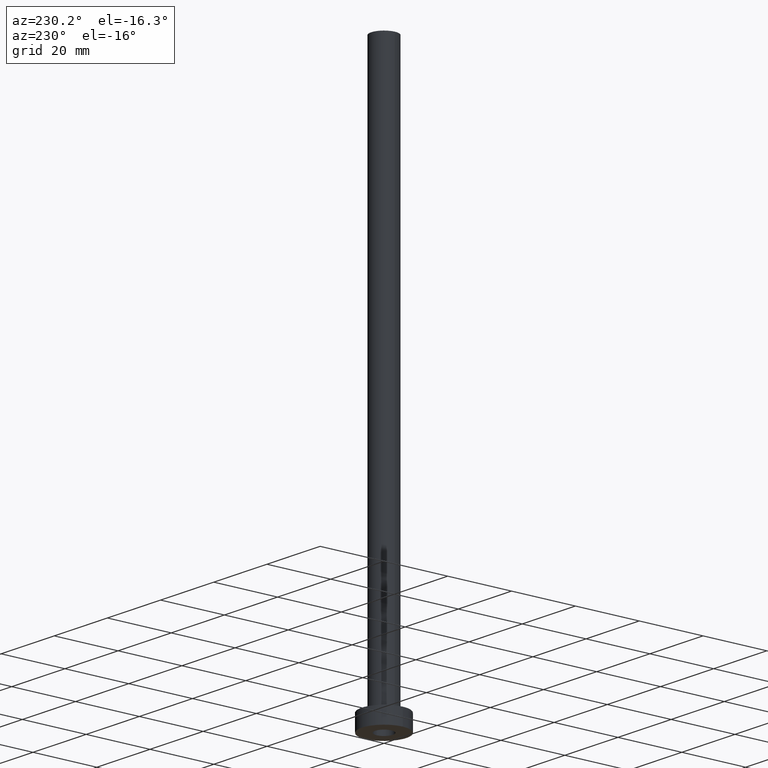
[diagram: clean part render]
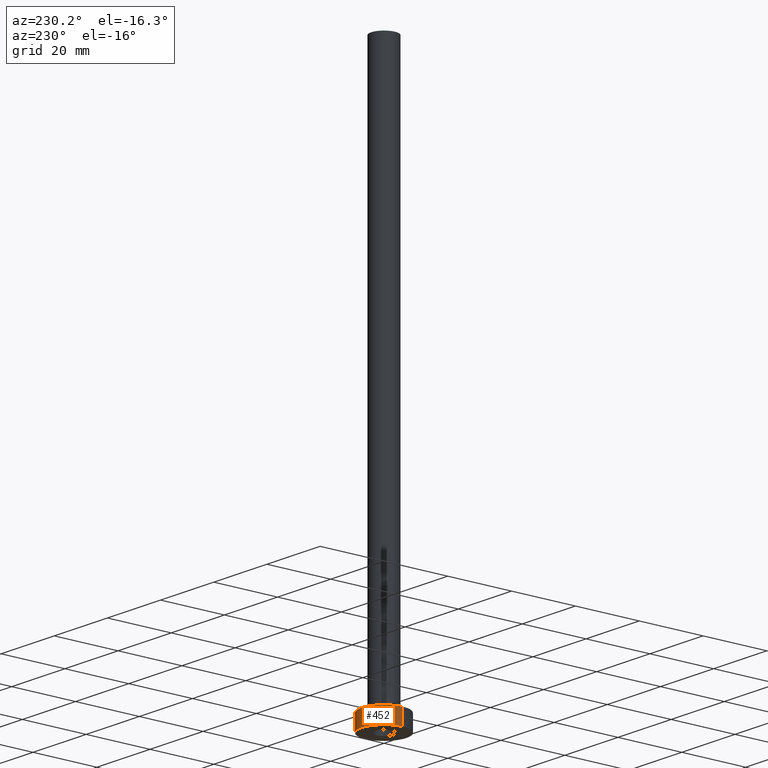
[diagram: same view with one face highlighted and labeled with its STEP entity id]
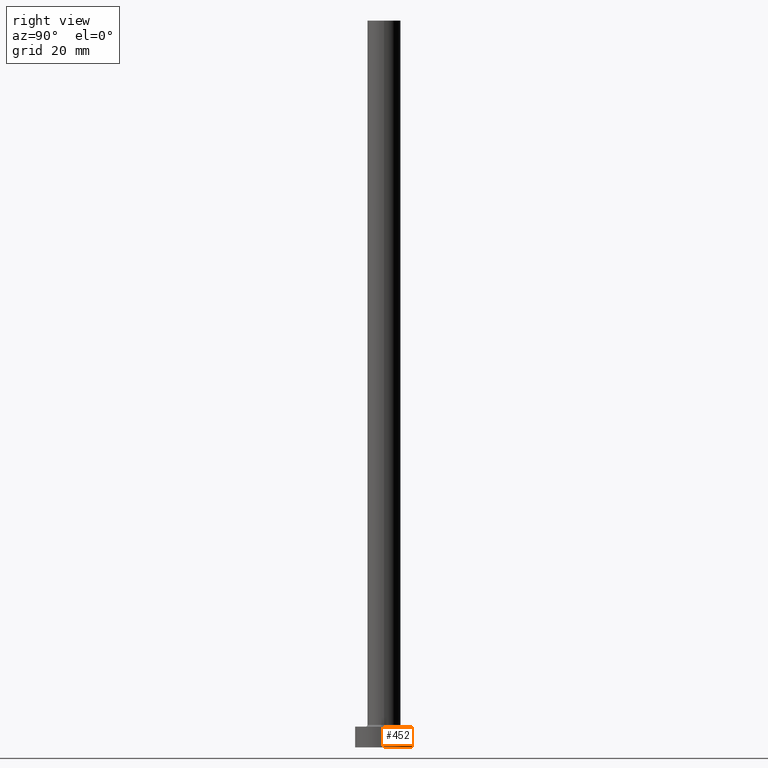
[diagram: same view with one face highlighted and labeled with its STEP entity id]
A machine part, auxiliary view. The second image highlights one B-rep face of the part: STEP entity #452.
A second angle (right view) of the same face is appended — the face is thin or edge-on in the first view.
In plain terms, the highlighted cylindrical surface (edge-blend (fillet) strip) has radius 7 mm, axis along (-0, -0, -1).
Its self-contained STEP definition (entity closure, byte-faithful):
#14 = EDGE_CURVE ( 'NONE', #414, #337, #263, .T. ) ;
#40 = DIRECTION ( 'NONE',  ( 1.000000000000000000, 0.000000000000000000, 0.000000000000000000 ) ) ;
#67 = DIRECTION ( 'NONE',  ( -0.000000000000000000, -0.000000000000000000, -1.000000000000000000 ) ) ;
#85 = DIRECTION ( 'NONE',  ( -0.000000000000000000, -0.000000000000000000, -1.000000000000000000 ) ) ;
#89 = LINE ( 'NONE', #279, #376 ) ;
#105 = CARTESIAN_POINT ( 'NONE',  ( 7.000000000000000000, 8.572527594031473190E-16, 5.000000000000000000 ) ) ;
#123 = AXIS2_PLACEMENT_3D ( 'NONE', #252, #85, #409 ) ;
#142 = EDGE_CURVE ( 'NONE', #179, #382, #408, .T. ) ;
#160 = DIRECTION ( 'NONE',  ( 1.000000000000000000, 0.000000000000000000, 0.000000000000000000 ) ) ;
#175 = DIRECTION ( 'NONE',  ( 0.000000000000000000, 0.000000000000000000, 1.000000000000000000 ) ) ;
#179 = VERTEX_POINT ( 'NONE', #105 ) ;
#181 = CARTESIAN_POINT ( 'NONE',  ( -7.000000000000000000, 0.000000000000000000, 0.000000000000000000 ) ) ;
#188 = EDGE_CURVE ( 'NONE', #179, #414, #260, .T. ) ;
#190 = AXIS2_PLACEMENT_3D ( 'NONE', #193, #313, #160 ) ;
#192 = CARTESIAN_POINT ( 'NONE',  ( -7.000000000000000000, 0.000000000000000000, 5.000000000000000000 ) ) ;
#193 = CARTESIAN_POINT ( 'NONE',  ( 0.000000000000000000, 0.000000000000000000, 0.000000000000000000 ) ) ;
#231 = VECTOR ( 'NONE', #450, 1000.000000000000000 ) ;
#249 = FACE_OUTER_BOUND ( 'NONE', #295, .T. ) ;
#252 = CARTESIAN_POINT ( 'NONE',  ( 0.000000000000000000, 0.000000000000000000, 5.000000000000000000 ) ) ;
#259 = CYLINDRICAL_SURFACE ( 'NONE', #123, 7.000000000000000000 ) ;
#260 = LINE ( 'NONE', #306, #231 ) ;
#261 = ORIENTED_EDGE ( 'NONE', *, *, #425, .F. ) ;
#263 = CIRCLE ( 'NONE', #190, 7.000000000000000000 ) ;
#265 = ORIENTED_EDGE ( 'NONE', *, *, #188, .T. ) ;
#271 = ORIENTED_EDGE ( 'NONE', *, *, #142, .F. ) ;
#275 = AXIS2_PLACEMENT_3D ( 'NONE', #361, #175, #40 ) ;
#279 = CARTESIAN_POINT ( 'NONE',  ( -7.000000000000000000, 0.000000000000000000, 5.000000000000000000 ) ) ;
#295 = EDGE_LOOP ( 'NONE', ( #271, #265, #435, #261 ) ) ;
#306 = CARTESIAN_POINT ( 'NONE',  ( 7.000000000000000000, 8.572527594031473190E-16, 5.000000000000000000 ) ) ;
#313 = DIRECTION ( 'NONE',  ( 0.000000000000000000, 0.000000000000000000, 1.000000000000000000 ) ) ;
#337 = VERTEX_POINT ( 'NONE', #181 ) ;
#361 = CARTESIAN_POINT ( 'NONE',  ( 0.000000000000000000, 0.000000000000000000, 5.000000000000000000 ) ) ;
#376 = VECTOR ( 'NONE', #67, 1000.000000000000000 ) ;
#382 = VERTEX_POINT ( 'NONE', #192 ) ;
#384 = CARTESIAN_POINT ( 'NONE',  ( 7.000000000000000000, 8.572527594031473190E-16, 0.000000000000000000 ) ) ;
#408 = CIRCLE ( 'NONE', #275, 7.000000000000000000 ) ;
#409 = DIRECTION ( 'NONE',  ( -1.000000000000000000, 0.000000000000000000, 0.000000000000000000 ) ) ;
#414 = VERTEX_POINT ( 'NONE', #384 ) ;
#425 = EDGE_CURVE ( 'NONE', #382, #337, #89, .T. ) ;
#435 = ORIENTED_EDGE ( 'NONE', *, *, #14, .T. ) ;
#450 = DIRECTION ( 'NONE',  ( -0.000000000000000000, -0.000000000000000000, -1.000000000000000000 ) ) ;
#452 = ADVANCED_FACE ( 'NONE', ( #249 ), #259, .T. ) ;